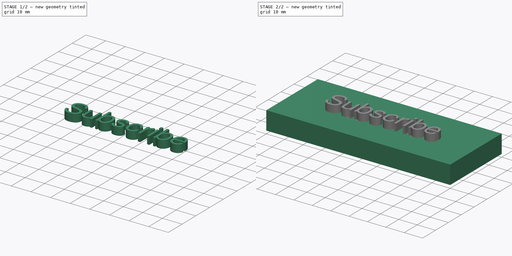
[diagram: build sequence overview — one tinted view per stage of 2, left to right]
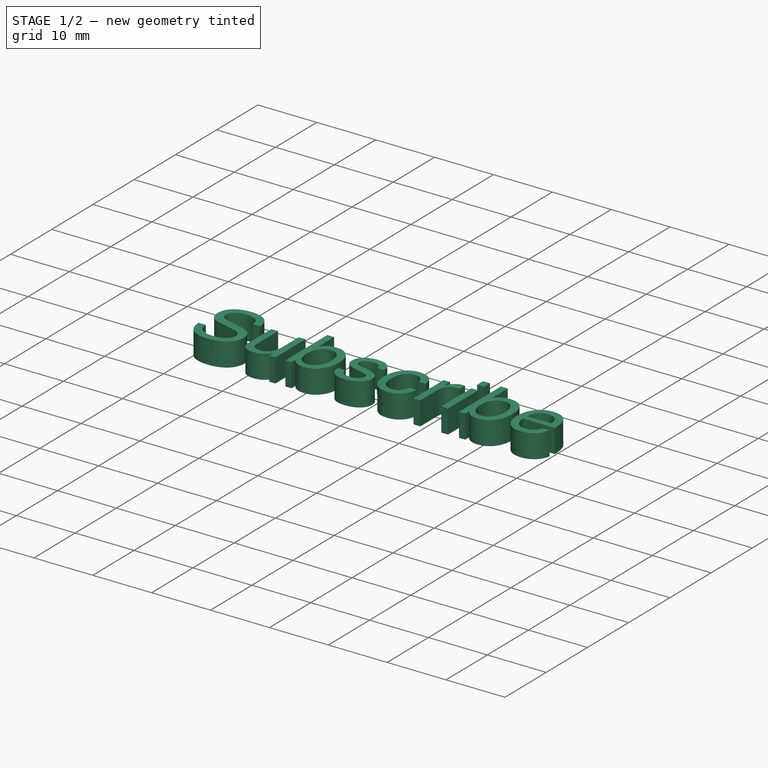
[diagram: stage 1 of 2 — iso view after this stage's code; geometry added in this stage tinted green]
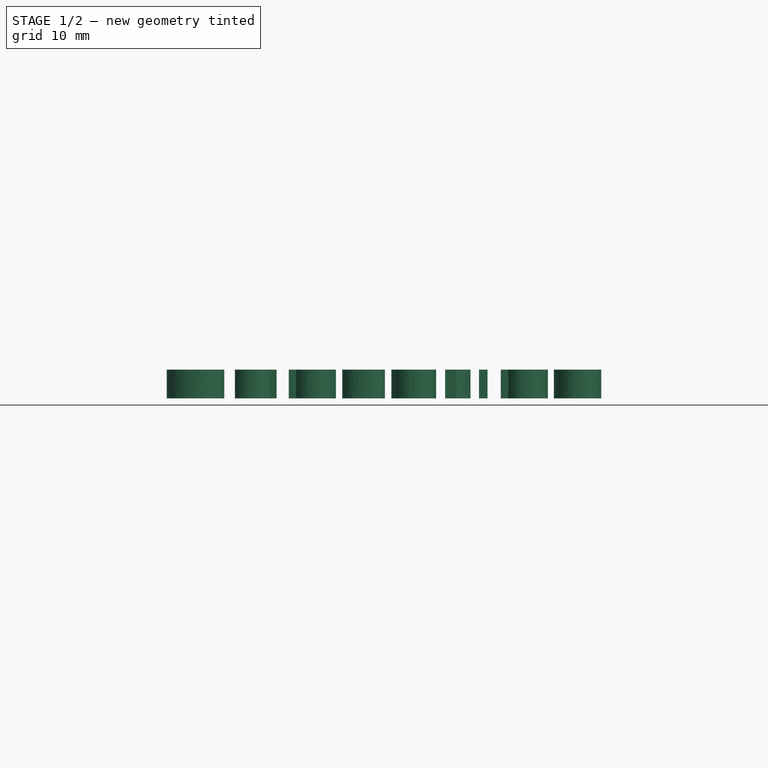
[diagram: stage 1 of 2 — front view after this stage's code; geometry added in this stage tinted green]
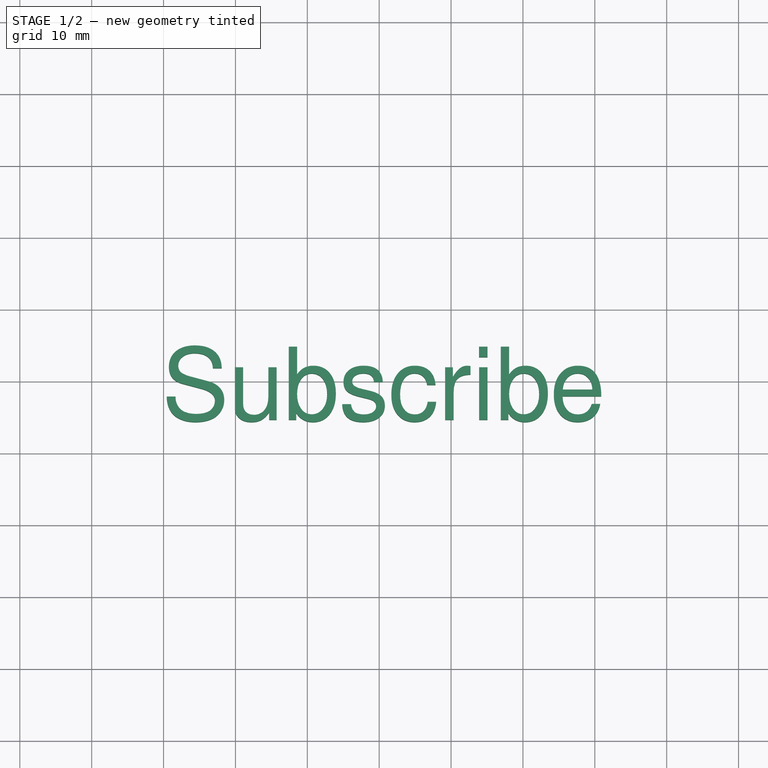
[diagram: stage 1 of 2 — top view after this stage's code; geometry added in this stage tinted green]
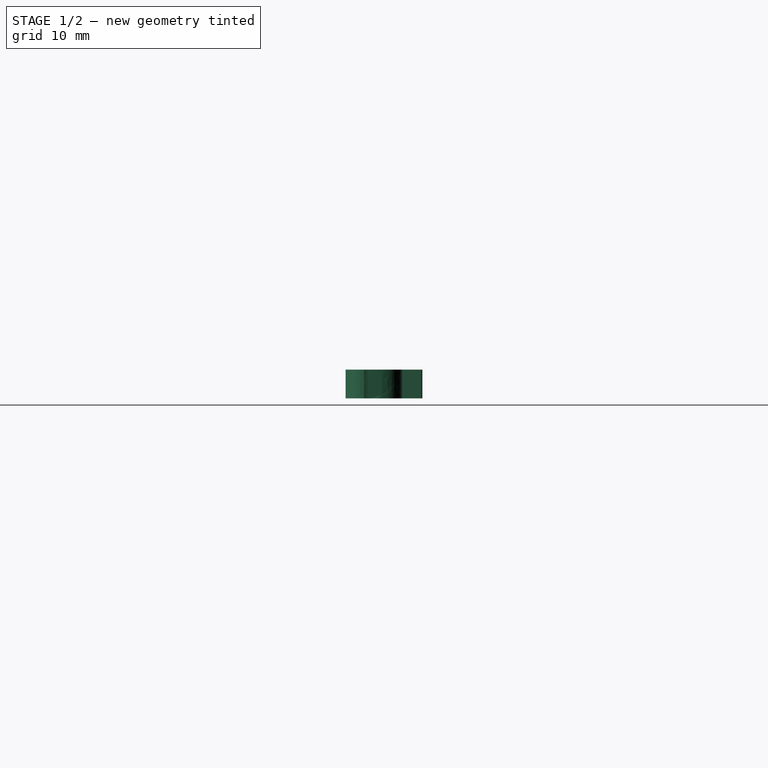
[diagram: stage 1 of 2 — right view after this stage's code; geometry added in this stage tinted green]
FCSTD DOCUMENT  (FreeCAD 2023.521R36908 (Git))
Label: Extruded Text
License: All rights reserved
objects: Sketcher::SketchObject×1, Spreadsheet::Sheet×1, Part::Part2DObjectPython×1, Part::Extrusion×1, PartDesign::FeatureBase×1, PartDesign::Pad×1, PartDesign::Body×1, App::Part×1
note: 10 computed .brp shape members not serialized (recipe doc carries the construction recipe); baked Part::Feature solids carry a one-line shape summary decoded from their .brp

FEATURE [Sketcher::SketchObject] Sketch
  ArcFitTolerance = 1e-06
  AttachmentSupport = -> [XY_Plane]
  ExternalBSplineMaxDegree = 5
  ExternalBSplineTolerance = 0.0001
  FullyConstrained = true
  InternalTolerance = 1e-06
  InvalidShape = false
  MakeInternals = false
  MapMode = 5
  Support = -> [XY_Plane]
  TreeRank = 13
  ValidateShape = false
  expr: Constraints[10] = <<parameters>>.width
  expr: Constraints[9] = <<parameters>>.length
  sketch-geometry (4):
    g0: LineSegment StartX=0 StartY=0 StartZ=0 EndX=100 EndY=0 EndZ=0
    g1: LineSegment StartX=100 StartY=0 StartZ=0 EndX=100 EndY=40 EndZ=0
    g2: LineSegment StartX=100 StartY=40 StartZ=0 EndX=0 EndY=40 EndZ=0
    g3: LineSegment StartX=0 StartY=40 StartZ=0 EndX=0 EndY=0 EndZ=0
  constraints (11):
    c: Coincident(g0,g1)
    c: Coincident(g1,g2)
    c: Coincident(g2,g3)
    c: Coincident(g3,g0)
    c: Horizontal(g0)
    c: Horizontal(g2)
    c: Vertical(g1)
    c: Vertical(g3)
    c: Coincident(g0,g-1)
    c: DistanceX(g2,g2) = 100
    c: DistanceY(g1,g1) = 40
FEATURE [Spreadsheet::Sheet] Spreadsheet  label="parameters"
  PythonMode = false
  ShowCells = 0
  TreeRank = 14
  cells = A1=length; B1(length)=100; A2=width; B2(width)=40; A3=height; B3(height)=10; A4=text_height; B4(text_height)=4; A5=font_size; B5(font_size)=5
FEATURE [Part::Part2DObjectPython] ShapeString  # Draft 2D object (typed FeaturePython)
  FontFile = <userpath>/Desktop/freecad/fonts/FreeSans.ttf
  InvalidShape = false
  MakeFace = true
  Placement = pos=(19.7689,14.6657,10) rot=(0,0,1;0rad)
  Size = 5
  String = Subscribe
  Tracking = 0
  TreeRank = 16
  ValidateShape = false
  expr: Placement.Base.x = (<<parameters>>.length - ._self.Shape.BoundBox.XLength) / 2
  expr: Placement.Base.y = (<<parameters>>.width - ._self.Shape.BoundBox.YLength) / 2
  expr: Placement.Base.z = <<parameters>>.height
  expr: Size = <<parameters>>.font_size
FEATURE [Part::Extrusion] Extrude
  AutoTaperInnerAngle = true
  Base = -> ShapeString
  Dir = (0,0,1)
  DirMode = 2
  FaceMakerClass = Part::FaceMakerBullseye
  InvalidShape = false
  LengthFwd = 4
  LengthRev = 0
  Linearize = true
  Solid = false
  Symmetric = false
  TaperInnerAngle = 0
  TaperInnerAngleRev = 0
  TreeRank = 17
  ValidateShape = false
  expr: LengthFwd = <<parameters>>.text_height
FEATURE [PartDesign::FeatureBase] BaseFeature
  BaseFeature = -> Extrude
  InvalidShape = false
  NewSolid = false
  Suppress = false
  TreeRank = 19
  ValidateShape = true
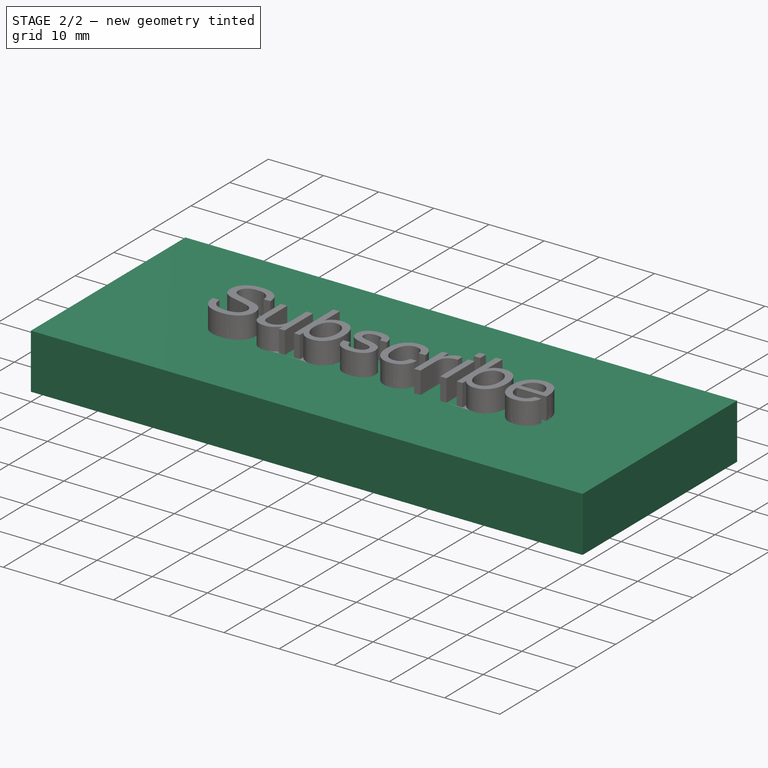
[diagram: stage 2 of 2 — iso view after this stage's code; geometry added in this stage tinted green]
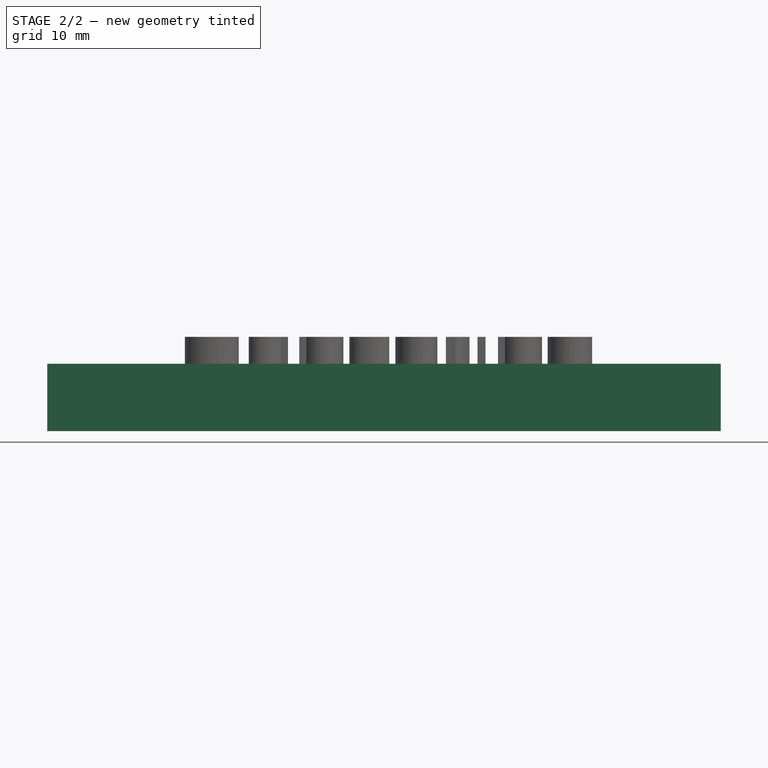
[diagram: stage 2 of 2 — front view after this stage's code; geometry added in this stage tinted green]
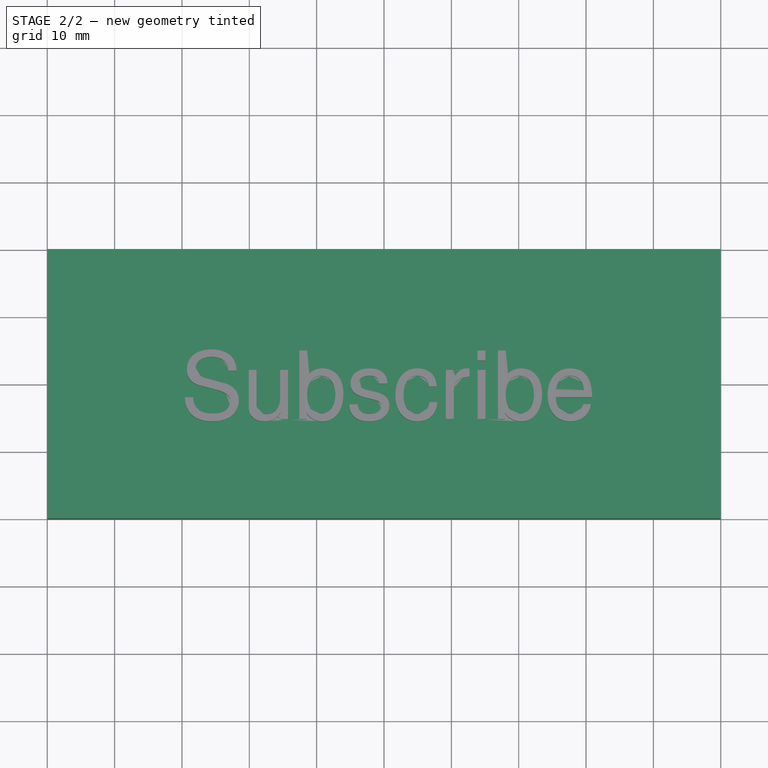
[diagram: stage 2 of 2 — top view after this stage's code; geometry added in this stage tinted green]
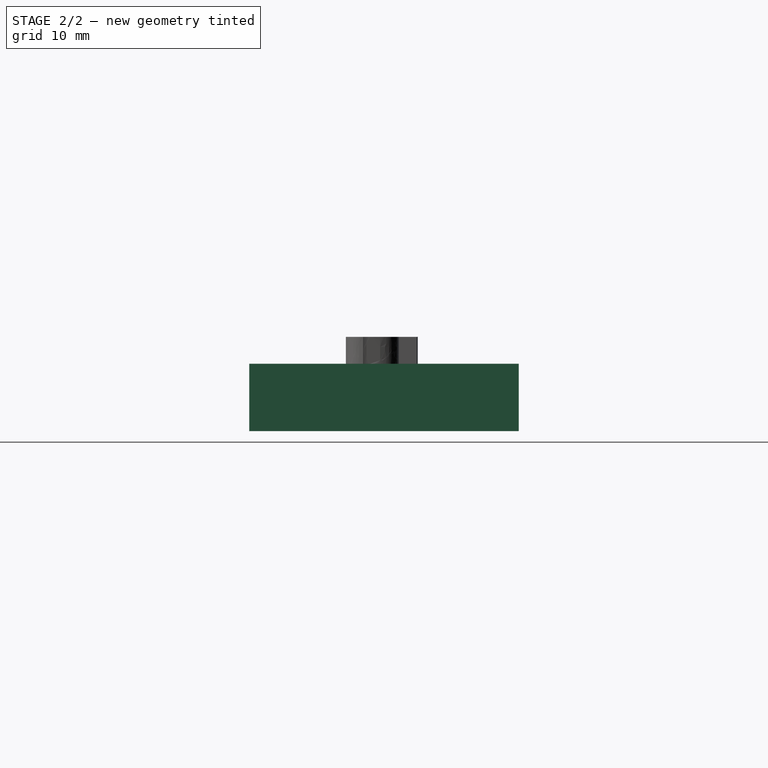
[diagram: stage 2 of 2 — right view after this stage's code; geometry added in this stage tinted green]
FEATURE [PartDesign::Pad] Pad
  AddSubType = 0
  AlongSketchNormal = false
  AutoTaperInnerAngle = true
  BaseFeature = -> BaseFeature
  CheckUpToFaceLimits = true
  ClaimChildren = false
  Direction = (0,0,1)
  Fit = 0
  FitJoin = 0
  InnerFit = 0
  InnerFitJoin = 0
  InvalidShape = false
  Length = 10
  Length2 = 10
  Linearize = true
  NewSolid = false
  Profile = -> Sketch
  ReferenceAxis = -> Sketch [N_Axis]
  Suppress = false
  TaperInnerAngle = 0
  TaperInnerAngleRev = 0
  TreeRank = 15
  Type = 0
  ValidateShape = true
  _ProfileBasedVersion = 1
  expr: Length = <<parameters>>.height
FEATURE [PartDesign::Body] Body
  AutoGroupSolids = false
  BaseFeature = -> Extrude
  ClaimAllChildren = false
  ExportMode = 0
  Group = -> [BaseFeature,Sketch,Pad]
  InvalidShape = false
  Origin = -> Origin001
  Tip = -> Pad
  TreeRank = 12
  ValidateShape = false
  _ExportChildren = -> [BaseFeature,Pad]
  _GroupVersion = 1
FEATURE [App::Part] Part  label="Block 1 (Extruded)"
  ClaimAllChildren = false
  ExportMode = 1
  Group = -> [Spreadsheet,Body,Extrude,ShapeString]
  Origin = -> Origin
  TreeRank = 1
  _ExportChildren = -> [Spreadsheet,Body,Extrude]
  _GroupVersion = 1
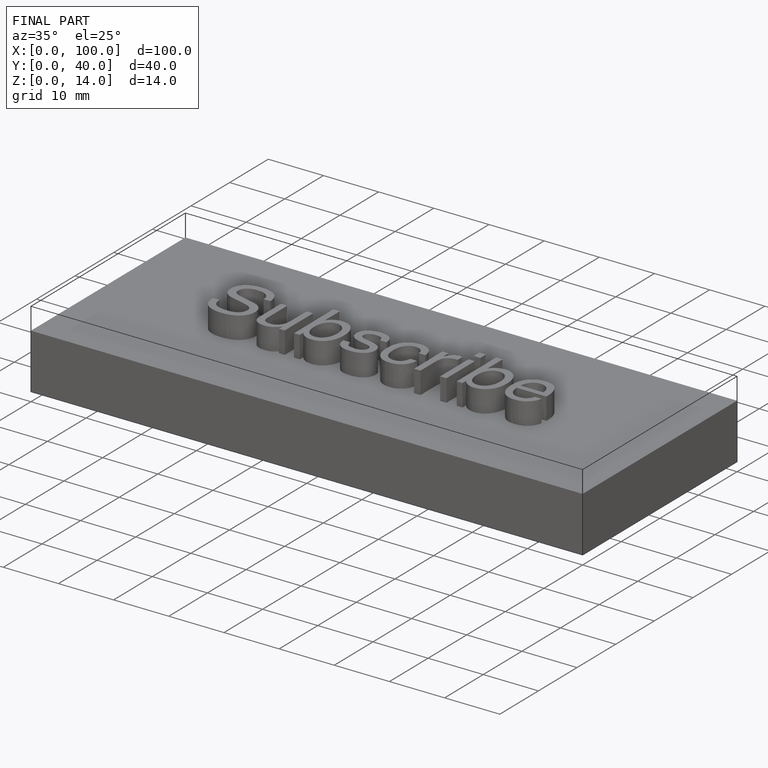
[diagram: finished part — iso view with bounding-box wireframe]
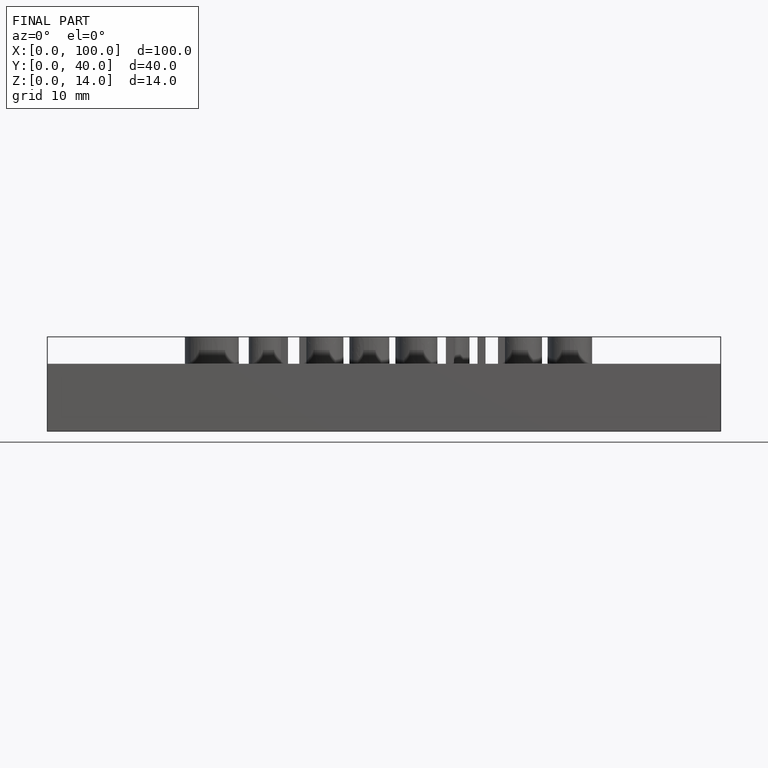
[diagram: finished part — front view with bounding-box wireframe]
